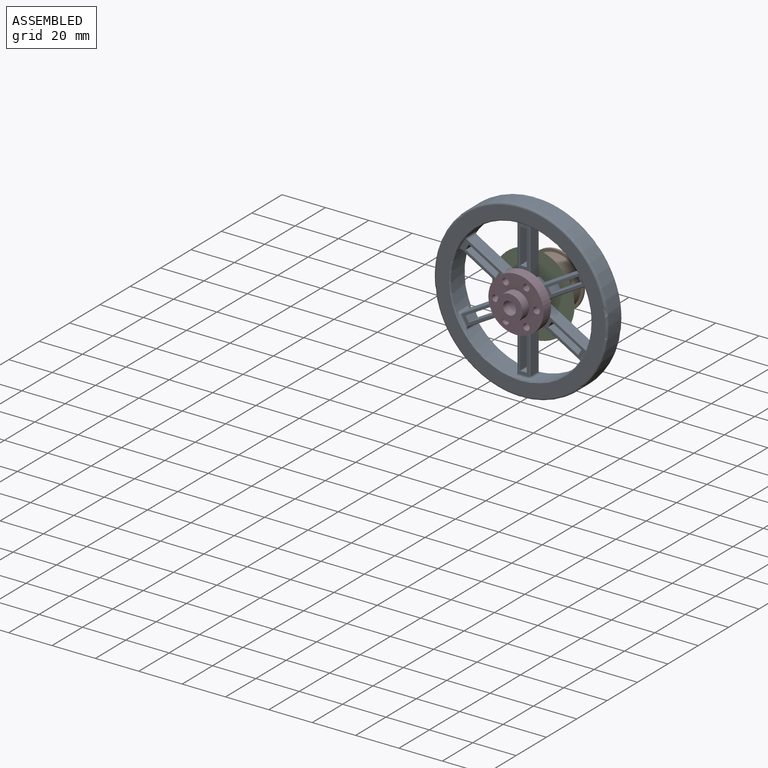
[diagram: assembled view]
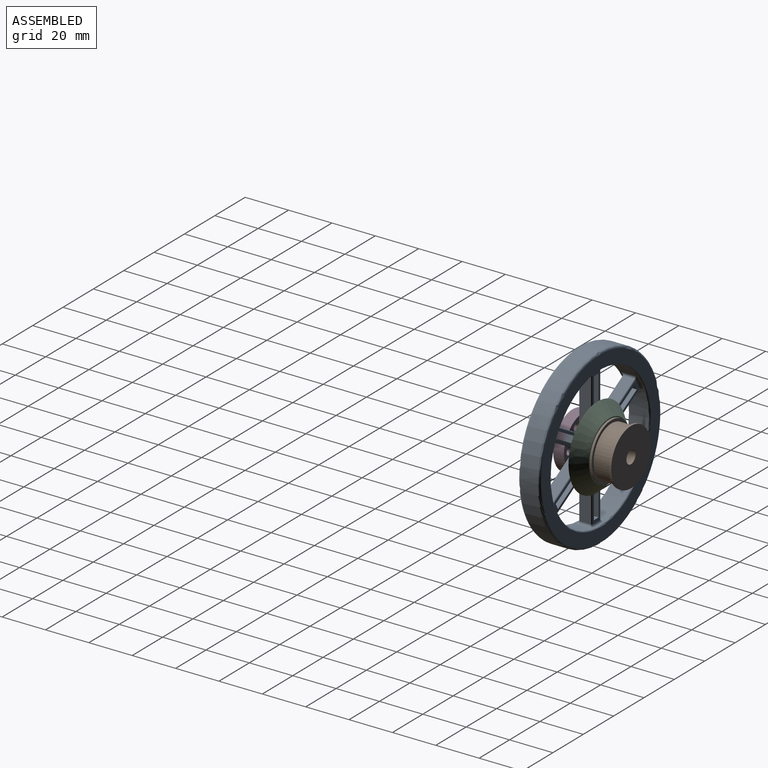
[diagram: assembled view, second angle]
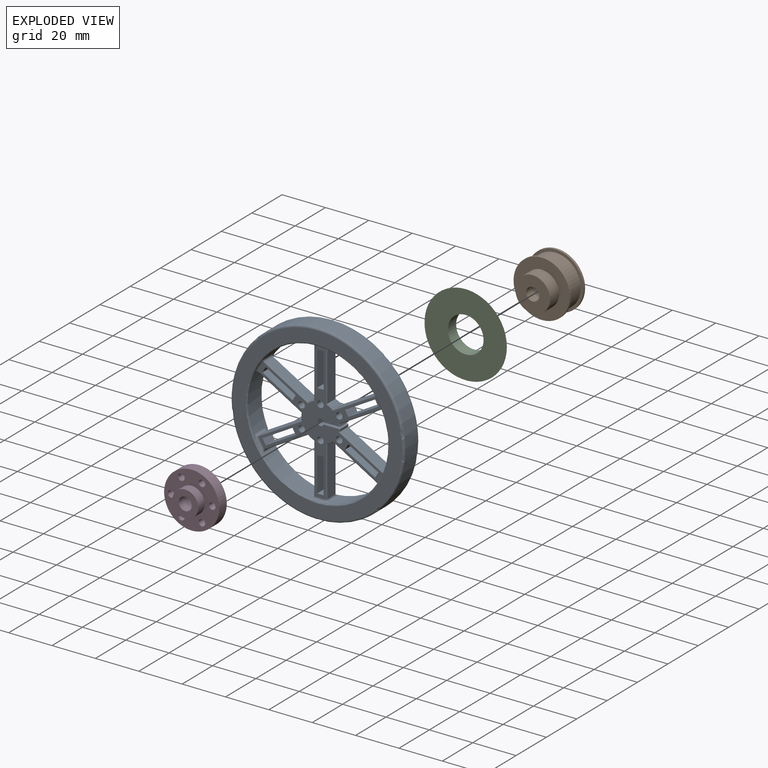
[diagram: exploded view]
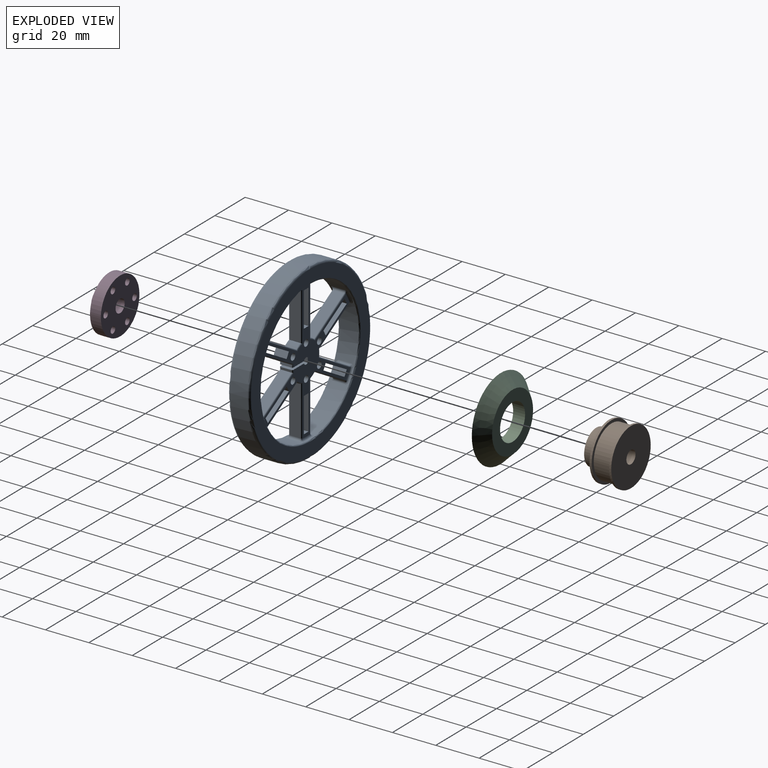
[diagram: exploded view, second angle]
ASSEMBLY  parts=4 mates=6
PART A: 162 faces, bbox 86.6x10x86.6 mm
  f0: cylinder r=40mm len=80mm, axis (0,1,0), area 1005.3mm2, adj f1,f2,f4
  f1: cylinder r=40mm len=80mm, axis (0,1,0), area 1005.3mm2, adj f0,f3,f5
  f2: torus R=39mm, axis (0,1,0), area 195.6mm2, adj f0,f3,f6
  f3: torus R=39mm, axis (0,1,0), area 195.6mm2, adj f1,f2,f6
  f4: torus R=39mm, axis (0,-1,0), area 195.6mm2, adj f0,f5,f7
  f5: torus R=39mm, axis (0,-1,0), area 195.6mm2, adj f1,f4,f7
  f6: plane 79.44x78mm, normal (0,1,0), area 1357.2mm2, adj f2,f3,f16,f17
  f7: plane 79.44x78mm, normal (0,-1,0), area 1357.2mm2, adj f4,f5,f9,f19
  f8: cylinder r=1mm len=5mm, axis (0,-1,0), area 8.5mm2, adj f27,f42,f43,f57
  f9: torus R=33mm, axis (0,1,0), area 80.6mm2, adj f7,f19,f57
  f10: cylinder r=1mm len=5mm, axis (0,-1,0), area 8.5mm2, adj f32,f55,f56,f57
  f11: cylinder r=1mm len=5mm, axis (0,-1,0), area 8.5mm2, adj f28,f45,f46,f57
  f12: cylinder r=1mm len=5mm, axis (0,-1,0), area 8.5mm2, adj f29,f47,f48,f57
  f13: cylinder r=1mm len=5mm, axis (0,-1,0), area 8.5mm2, adj f30,f50,f51,f57
  f14: cylinder r=1mm len=5mm, axis (0,-1,0), area 8.5mm2, adj f31,f52,f53,f57
  f15: cylinder r=1mm len=5mm, axis (0,-1,0), area 8.5mm2, adj f26,f40,f41,f63
  f16: torus R=33mm, axis (0,-1,0), area 80.6mm2, adj f6,f17,f57,f63
  f17: torus R=33mm, axis (0,-1,0), area 80.6mm2, adj f6,f16,f57,f63
  f18: cylinder r=1mm len=5mm, axis (0,-1,0), area 8.5mm2, adj f33,f58,f59,f63
  f19: torus R=33mm, axis (0,1,0), area 80.6mm2, adj f7,f9,f63
  f20: cylinder r=1mm len=5mm, axis (0,-1,0), area 8.5mm2, adj f25,f37,f38,f63
  f21: cylinder r=1mm len=5mm, axis (0,-1,0), area 8.5mm2, adj f34,f61,f62,f63
  f22: cylinder r=1mm len=5mm, axis (0,-1,0), area 8.5mm2, adj f35,f63,f64,f65
  f23: cylinder r=1mm len=5mm, axis (0,-1,0), area 8.5mm2, adj f24,f36,f63,f67
  f24: bspline ~1.54x1.5mm, area 2.2mm2, adj f23,f63,f68,f69
  f25: bspline ~1.83x1.5mm, area 2.2mm2, adj f20,f63,f69,f70
  f26: bspline ~1.64x1.5mm, area 2.2mm2, adj f15,f63,f72,f73
  f27: bspline ~1.63x1.5mm, area 2.2mm2, adj f8,f57,f63,f73,f74
  f28: bspline ~1.83x1.5mm, area 2.2mm2, adj f11,f57,f76,f77
  f29: bspline ~1.54x1.5mm, area 2.2mm2, adj f12,f57,f77,f78
  f30: bspline ~1.54x1.5mm, area 2.2mm2, adj f13,f57,f80,f81
  f31: bspline ~1.83x1.5mm, area 2.2mm2, adj f14,f57,f81,f82
  f32: bspline ~1.64x1.5mm, area 2.2mm2, adj f10,f57,f84,f85
  f33: bspline ~1.63x1.5mm, area 2.2mm2, adj f18,f57,f63,f85,f86
  f34: bspline ~1.83x1.5mm, area 2.2mm2, adj f21,f63,f88,f89
  f35: bspline ~1.54x1.5mm, area 2.2mm2, adj f22,f63,f89,f90
  f36: bspline ~1.54x1.5mm, area 2.2mm2, adj f23,f63,f92,f93
  f37: bspline ~1.83x1.5mm, area 2.2mm2, adj f20,f63,f93,f94
  f38: plane 19.71x11.38mm, normal (-0.5,0,-0.87), area 113.8mm2, adj f20,f39,f70,f94
  f39: cylinder r=9mm len=5mm, axis (0,-1,0), area 16.5mm2, adj f38,f40,f71,f95
  f40: plane 22.76x5mm, normal (1,0,0), area 113.8mm2, adj f15,f39,f72,f96
  f41: bspline ~1.63x1.5mm, area 2.2mm2, adj f15,f63,f96,f97
  f42: bspline ~1.64x1.5mm, area 2.2mm2, adj f8,f57,f63,f97,f98
  f43: plane 22.76x5mm, normal (-1,0,0), area 113.8mm2, adj f8,f44,f74,f98
  f44: cylinder r=9mm len=5mm, axis (0,-1,0), area 16.5mm2, adj f43,f45,f75,f99
  f45: plane 19.71x11.38mm, normal (0.5,0,-0.87), area 113.8mm2, adj f11,f44,f76,f100
  f46: bspline ~1.83x1.5mm, area 2.2mm2, adj f11,f57,f100,f101
  f47: bspline ~1.54x1.5mm, area 2.2mm2, adj f12,f57,f101,f102
  f48: plane 19.71x11.38mm, normal (-0.5,0,0.87), area 113.8mm2, adj f12,f49,f78,f102
  f49: cylinder r=9mm len=5mm, axis (0,-1,0), area 16.5mm2, adj f48,f50,f79,f103
  f50: plane 19.71x11.38mm, normal (-0.5,0,-0.87), area 113.8mm2, adj f13,f49,f80,f104
  f51: bspline ~1.54x1.5mm, area 2.2mm2, adj f13,f57,f104,f105
  f52: bspline ~1.83x1.5mm, area 2.2mm2, adj f14,f57,f105,f106
  f53: plane 19.71x11.38mm, normal (0.5,0,0.87), area 113.8mm2, adj f14,f54,f82,f106
  f54: cylinder r=9mm len=5mm, axis (0,-1,0), area 16.5mm2, adj f53,f55,f83,f107
  f55: plane 22.76x5mm, normal (-1,0,0), area 113.8mm2, adj f10,f54,f84,f108
  f56: bspline ~1.63x1.5mm, area 2.2mm2, adj f10,f57,f108,f109
  f57: cylinder r=32.5mm len=64.86mm, axis (0,-1,0), area 726.3mm2, adj f8,f9,f10,f11,f12,f13,f14,f16
  f58: bspline ~1.64x1.5mm, area 2.2mm2, adj f18,f57,f63,f109,f110
  f59: plane 22.76x5mm, normal (1,0,0), area 113.8mm2, adj f18,f60,f86,f110
  f60: cylinder r=9mm len=5mm, axis (0,-1,0), area 16.5mm2, adj f59,f61,f87,f111
  f61: plane 19.71x11.38mm, normal (-0.5,0,0.87), area 113.8mm2, adj f21,f60,f88,f112
  f62: bspline ~1.83x1.5mm, area 2.2mm2, adj f21,f63,f112,f113
  f63: cylinder r=32.5mm len=64.86mm, axis (0,-1,0), area 726.3mm2, adj f15,f16,f17,f18,f19,f20,f21,f22
  f64: bspline ~1.54x1.5mm, area 2.2mm2, adj f22,f63,f113,f114
  f65: plane 19.71x11.38mm, normal (0.5,0,-0.87), area 113.8mm2, adj f22,f66,f90,f114
  f66: cylinder r=9mm len=5mm, axis (0,-1,0), area 5.8mm2, adj f65,f91,f115,f116
  f67: plane 19.71x11.38mm, normal (0.5,0,0.87), area 113.8mm2, adj f23,f68,f92,f155
  f68: cylinder r=0.5mm len=20.41mm, axis (-0.87,0,0.5), area 18.1mm2, adj f24,f67,f156,f157
  f69: revolved ~4.9x3.4mm, area 8mm2, adj f24,f25,f63,f157
  f70: cylinder r=0.5mm len=20.41mm, axis (0.87,0,-0.5), area 18.1mm2, adj f25,f38,f71,f157
  f71: torus R=8.5mm, axis (0,-1,0), area 2.8mm2, adj f39,f70,f72,f157
  f72: cylinder r=0.5mm len=23.28mm, axis (0,0,1), area 18.1mm2, adj f26,f40,f71,f157
  f73: revolved ~5.16x1.1mm, area 8mm2, adj f26,f27,f63,f157
  f74: cylinder r=0.5mm len=23.28mm, axis (0,0,-1), area 18.1mm2, adj f27,f43,f75,f157
  f75: torus R=8.5mm, axis (0,-1,0), area 2.8mm2, adj f44,f74,f76,f157
  f76: cylinder r=0.5mm len=20.41mm, axis (0.87,0,0.5), area 18.1mm2, adj f28,f45,f75,f157
  f77: revolved ~4.9x3.4mm, area 8mm2, adj f28,f29,f57,f157
  f78: cylinder r=0.5mm len=20.41mm, axis (-0.87,0,-0.5), area 18.1mm2, adj f29,f48,f79,f157
  f79: torus R=8.5mm, axis (0,-1,0), area 2.8mm2, adj f49,f78,f80,f157
  f80: cylinder r=0.5mm len=20.41mm, axis (0.87,0,-0.5), area 18.1mm2, adj f30,f50,f79,f157
  f81: revolved ~4.9x3.4mm, area 8mm2, adj f30,f31,f57,f157
  f82: cylinder r=0.5mm len=20.41mm, axis (-0.87,0,0.5), area 18.1mm2, adj f31,f53,f83,f157
  f83: torus R=8.5mm, axis (0,-1,0), area 2.8mm2, adj f54,f82,f84,f157
  f84: cylinder r=0.5mm len=23.28mm, axis (0,0,-1), area 18.1mm2, adj f32,f55,f83,f157
  f85: revolved ~5.16x1.1mm, area 8mm2, adj f32,f33,f57,f157
  f86: cylinder r=0.5mm len=23.28mm, axis (0,0,1), area 18.1mm2, adj f33,f59,f87,f157
  f87: torus R=8.5mm, axis (0,-1,0), area 2.8mm2, adj f60,f86,f88,f157
  f88: cylinder r=0.5mm len=20.41mm, axis (-0.87,0,-0.5), area 18.1mm2, adj f34,f61,f87,f157
  f89: revolved ~4.9x3.4mm, area 8mm2, adj f34,f35,f63,f157
  f90: cylinder r=0.5mm len=20.41mm, axis (0.87,0,0.5), area 18.1mm2, adj f35,f65,f91,f157
  f91: torus R=8.5mm, axis (0,-1,0), area 1mm2, adj f66,f90,f116,f157
  f92: cylinder r=0.5mm len=20.41mm, axis (0.87,0,-0.5), area 18.1mm2, adj f36,f67,f154,f159
  f93: revolved ~4.9x3.4mm, area 8mm2, adj f36,f37,f63,f159
  f94: cylinder r=0.5mm len=20.41mm, axis (-0.87,0,0.5), area 18.1mm2, adj f37,f38,f95,f159
  f95: torus R=8.5mm, axis (0,1,0), area 2.8mm2, adj f39,f94,f96,f159
  f96: cylinder r=0.5mm len=23.28mm, axis (0,0,-1), area 18.1mm2, adj f40,f41,f95,f159
  f97: revolved ~5.16x1.1mm, area 8mm2, adj f41,f42,f63,f159
  f98: cylinder r=0.5mm len=23.28mm, axis (0,0,1), area 18.1mm2, adj f42,f43,f99,f159
  f99: torus R=8.5mm, axis (0,1,0), area 2.8mm2, adj f44,f98,f100,f159
  f100: cylinder r=0.5mm len=20.41mm, axis (-0.87,0,-0.5), area 18.1mm2, adj f45,f46,f99,f159
  f101: revolved ~4.9x3.4mm, area 8mm2, adj f46,f47,f57,f159
  f102: cylinder r=0.5mm len=20.41mm, axis (0.87,0,0.5), area 18.1mm2, adj f47,f48,f103,f159
  f103: torus R=8.5mm, axis (0,1,0), area 2.8mm2, adj f49,f102,f104,f159
  f104: cylinder r=0.5mm len=20.41mm, axis (-0.87,0,0.5), area 18.1mm2, adj f50,f51,f103,f159
  f105: revolved ~4.9x3.4mm, area 8mm2, adj f51,f52,f57,f159
  f106: cylinder r=0.5mm len=20.41mm, axis (0.87,0,-0.5), area 18.1mm2, adj f52,f53,f107,f159
  f107: torus R=8.5mm, axis (0,1,0), area 2.8mm2, adj f54,f106,f108,f159
  f108: cylinder r=0.5mm len=23.28mm, axis (0,0,1), area 18.1mm2, adj f55,f56,f107,f159
  f109: revolved ~5.16x1.1mm, area 8mm2, adj f56,f57,f58,f159
  f110: cylinder r=0.5mm len=23.28mm, axis (0,0,-1), area 18.1mm2, adj f58,f59,f111,f159
  f111: torus R=8.5mm, axis (0,1,0), area 2.8mm2, adj f60,f110,f112,f159
  f112: cylinder r=0.5mm len=20.41mm, axis (0.87,0,0.5), area 18.1mm2, adj f61,f62,f111,f159
  f113: revolved ~4.9x3.4mm, area 8mm2, adj f62,f63,f64,f159
  f114: cylinder r=0.5mm len=20.41mm, axis (-0.87,0,-0.5), area 18.1mm2, adj f64,f65,f115,f159
  f115: torus R=8.5mm, axis (0,1,0), area 1mm2, adj f66,f114,f116,f159
  f116: plane 7.58x6.01mm, normal (0,0,-1), area 45.3mm2, adj f66,f91,f115,f117,f157,f159
  f117: cylinder r=1.5mm len=6mm, axis (0,1,0), area 17.6mm2, adj f116,f157,f158,f159
  f118: plane 13.86x8mm, normal (-0.5,0,-0.87), area 96mm2, adj f119,f121,f157,f159
  f119: plane 6x2.6mm, normal (0.87,0,-0.5), area 18mm2, adj f118,f120,f157,f159
  f120: plane 13.86x8mm, normal (0.5,0,0.87), area 96mm2, adj f119,f121,f157,f159
  f121: plane 6x2.6mm, normal (-0.87,0,0.5), area 18mm2, adj f118,f120,f157,f159
  f122: plane 16x6mm, normal (1,0,0), area 96mm2, adj f123,f125,f157,f159
  f123: plane 6x3mm, normal (0,0,1), area 18mm2, adj f122,f124,f157,f159
  f124: plane 16x6mm, normal (-1,0,0), area 96mm2, adj f123,f125,f157,f159
  f125: plane 6x3mm, normal (0,0,-1), area 18mm2, adj f122,f124,f157,f159
  f126: plane 13.86x8mm, normal (-0.5,0,0.87), area 96mm2, adj f127,f129,f157,f159
  f127: plane 6x2.6mm, normal (-0.87,0,-0.5), area 18mm2, adj f126,f128,f157,f159
  f128: plane 13.86x8mm, normal (0.5,0,-0.87), area 96mm2, adj f127,f129,f157,f159
  f129: plane 6x2.6mm, normal (0.87,0,0.5), area 18mm2, adj f126,f128,f157,f159
  f130: plane 16x6mm, normal (-1,0,0), area 96mm2, adj f131,f133,f157,f159
  f131: plane 6x3mm, normal (0,0,-1), area 18mm2, adj f130,f132,f157,f159
  f132: plane 16x6mm, normal (1,0,0), area 96mm2, adj f131,f133,f157,f159
  f133: plane 6x3mm, normal (0,0,1), area 18mm2, adj f130,f132,f157,f159
  f134: plane 13.86x8mm, normal (0.5,0,0.87), area 96mm2, adj f135,f137,f157,f159
  f135: plane 6x2.6mm, normal (-0.87,0,0.5), area 18mm2, adj f134,f136,f157,f159
  f136: plane 13.86x8mm, normal (-0.5,0,-0.87), area 96mm2, adj f135,f137,f157,f159
  f137: plane 6x2.6mm, normal (0.87,0,-0.5), area 18mm2, adj f134,f136,f157,f159
  f138: plane 13.86x8mm, normal (0.5,0,-0.87), area 96mm2, adj f139,f141,f157,f159
  f139: plane 6x2.6mm, normal (0.87,0,0.5), area 18mm2, adj f138,f140,f157,f159
  f140: plane 13.86x8mm, normal (-0.5,0,0.87), area 96mm2, adj f139,f141,f157,f159
  f141: plane 6x2.6mm, normal (-0.87,0,-0.5), area 18mm2, adj f138,f140,f157,f159
  f142: cylinder r=1.5mm len=6mm, axis (0,-1,0), area 28.3mm2, adj f143,f157,f159
  f143: cylinder r=1.5mm len=6mm, axis (0,-1,0), area 28.3mm2, adj f142,f157,f159
  f144: cylinder r=1.5mm len=6mm, axis (0,-1,0), area 28.3mm2, adj f145,f157,f159
  f145: cylinder r=1.5mm len=6mm, axis (0,-1,0), area 28.3mm2, adj f144,f157,f159
  f146: cylinder r=1.5mm len=6mm, axis (0,-1,0), area 28.3mm2, adj f147,f157,f159
  f147: cylinder r=1.5mm len=6mm, axis (0,-1,0), area 28.3mm2, adj f146,f157,f159
  f148: cylinder r=1.5mm len=6mm, axis (0,-1,0), area 28.3mm2, adj f149,f157,f159
  f149: cylinder r=1.5mm len=6mm, axis (0,-1,0), area 28.3mm2, adj f148,f157,f159
  f150: cylinder r=1.5mm len=6mm, axis (0,-1,0), area 28.3mm2, adj f151,f157,f159
  f151: cylinder r=1.5mm len=6mm, axis (0,-1,0), area 28.3mm2, adj f150,f157,f159
  f152: cylinder r=1.5mm len=6mm, axis (0,-1,0), area 28.3mm2, adj f153,f157,f159
  f153: cylinder r=1.5mm len=6mm, axis (0,-1,0), area 28.3mm2, adj f152,f157,f159
  f154: torus R=8.5mm, axis (0,1,0), area 1mm2, adj f92,f155,f159,f160
  f155: cylinder r=9mm len=5mm, axis (0,-1,0), area 5.8mm2, adj f67,f154,f156,f160
  f156: torus R=8.5mm, axis (0,-1,0), area 1mm2, adj f68,f155,f157,f160
  f157: plane 63.01x56.89mm, normal (0,-1,0), area 576mm2, adj f68,f69,f70,f71,f72,f73,f74,f75
  f158: plane 6x2.24mm, normal (1,0,0), area 13.4mm2, adj f117,f157,f159,f161
  f159: plane 63.01x56.89mm, normal (0,1,0), area 576mm2, adj f92,f93,f94,f95,f96,f97,f98,f99
  f160: plane 7.58x6.01mm, normal (0,0,1), area 45.3mm2, adj f154,f155,f156,f157,f159,f161
  f161: cylinder r=1.5mm len=6mm, axis (0,1,0), area 17.6mm2, adj f157,f158,f159,f160
PART B: 15 faces, bbox 26x16x26.5 mm
  f0: plane 26.48x26mm, normal (0,-1,0), area 102.7mm2, adj f1,f2,f3,f4
  f1: cylinder r=13mm len=26mm, axis (0,1,0), area 40.8mm2, adj f0,f2,f5
  f2: cylinder r=13mm len=26mm, axis (0,1,0), area 40.8mm2, adj f0,f1,f5
  f3: cylinder r=11.67mm len=23.35mm, axis (0,1,0), area 293.4mm2, adj f0,f4,f6
  f4: cylinder r=11.67mm len=23.35mm, axis (0,1,0), area 293.4mm2, adj f0,f3,f6
  f5: plane 26.48x26mm, normal (0,1,0), area 329.9mm2, adj f1,f2,f7,f8
  f6: plane 26.48x26mm, normal (0,1,0), area 102.7mm2, adj f3,f4,f9,f10
  f7: cylinder r=8mm len=16mm, axis (0,1,0), area 150.8mm2, adj f5,f8,f11
  f8: cylinder r=8mm len=16mm, axis (0,1,0), area 150.8mm2, adj f5,f7,f11
  f9: cylinder r=13mm len=26mm, axis (0,1,0), area 40.8mm2, adj f6,f10,f13
  f10: cylinder r=13mm len=26mm, axis (0,1,0), area 40.8mm2, adj f6,f9,f13
  f11: plane 16.3x16mm, normal (0,1,0), area 172.8mm2, adj f7,f8,f12,f14
  f12: cylinder r=3mm len=16mm, axis (0,-1,0), area 150.8mm2, adj f11,f13,f14
  f13: plane 26.48x26mm, normal (0,-1,0), area 502.7mm2, adj f9,f10,f12,f14
  f14: cylinder r=3mm len=16mm, axis (0,-1,0), area 150.8mm2, adj f11,f12,f13
PART C: 4 faces, bbox 38x38x5.5 mm
  f0: cylinder r=8.25mm len=16.5mm, axis (0,0,-1), area 285.1mm2, adj f1,f2
  f1: plane 27x27mm, normal (0,0,1), area 358.7mm2, adj f0,f3
  f2: plane 38x38mm, normal (0,0,-1), area 920.3mm2, adj f0,f3
  f3: cone r=13.5mm half-angle=45deg, axis (0,0,-1), area 794.2mm2, adj f1,f2
PART D: 21 faces, bbox 25.4x9.2x25.9 mm
  f0: plane 12.22x12mm, normal (0,1,0), area 84.8mm2, adj f1,f2,f13,f14
  f1: cylinder r=3mm len=9.2mm, axis (0,-1,0), area 86.7mm2, adj f0,f2,f17
  f2: cylinder r=3mm len=9.2mm, axis (0,-1,0), area 86.7mm2, adj f0,f1,f17
  f3: cylinder r=1.5mm len=5mm, axis (0,1,0), area 23.6mm2, adj f4,f17,f19
  f4: cylinder r=1.5mm len=5mm, axis (0,1,0), area 23.6mm2, adj f3,f17,f19
  f5: cylinder r=1.5mm len=5mm, axis (0,1,0), area 23.6mm2, adj f6,f17,f19
  f6: cylinder r=1.5mm len=5mm, axis (0,1,0), area 23.6mm2, adj f5,f17,f19
  f7: cylinder r=1.5mm len=5mm, axis (0,1,0), area 23.6mm2, adj f8,f17,f19
  f8: cylinder r=1.5mm len=5mm, axis (0,1,0), area 23.6mm2, adj f7,f17,f19
  f9: cylinder r=1.5mm len=5mm, axis (0,1,0), area 23.6mm2, adj f10,f17,f19
  f10: cylinder r=1.5mm len=5mm, axis (0,1,0), area 23.6mm2, adj f9,f17,f19
  f11: cylinder r=1.5mm len=5mm, axis (0,1,0), area 23.6mm2, adj f12,f17,f19
  f12: cylinder r=1.5mm len=5mm, axis (0,1,0), area 23.6mm2, adj f11,f17,f19
  f13: cylinder r=6mm len=12mm, axis (0,1,0), area 79.2mm2, adj f0,f14,f19
  f14: cylinder r=6mm len=12mm, axis (0,1,0), area 79.2mm2, adj f0,f13,f19
  f15: cylinder r=12.7mm len=25.4mm, axis (0,1,0), area 199.5mm2, adj f16,f17,f19
  f16: cylinder r=12.7mm len=25.4mm, axis (0,1,0), area 199.5mm2, adj f15,f17,f19
  f17: plane 25.87x25.4mm, normal (0,-1,0), area 436mm2, adj f1,f2,f3,f4,f5,f6,f7,f8
  f18: cylinder r=1.5mm len=5mm, axis (0,1,0), area 23.6mm2, adj f17,f19,f20
  f19: plane 25.87x25.4mm, normal (0,1,0), area 351.2mm2, adj f3,f4,f5,f6,f7,f8,f9,f10
  f20: cylinder r=1.5mm len=5mm, axis (0,1,0), area 23.6mm2, adj f17,f18,f19
PLACE A at identity fixed
PLACE B rot(axis=(1,0,0),180deg) t=(0,24,0)mm
PLACE C rot(axis=(-1,0,0),90deg) t=(0,8.5,0)mm
PLACE D rot(axis=(0.71,0,0.71),180deg) t=(0,2,0)mm
MATE cylindrical A.f0 <-> D.f1  axis (0,1,0) through (0,2,0)mm
MATE planar B.f1 <-> A.f159  axis (0,-1,0) through (0,8,0)mm
MATE planar D.f1 <-> A.f157  axis (0,1,0) through (0,2,0)mm
MATE cylindrical C.f0 <-> B.f1  axis (0,-1,0) through (0,11.25,0)mm
MATE planar C.f0 <-> B.f1  axis (0,1,0) through (0,14,0)mm
MATE cylindrical A.f0 <-> B.f1  axis (0,1,0) through (0,8,0)mm
